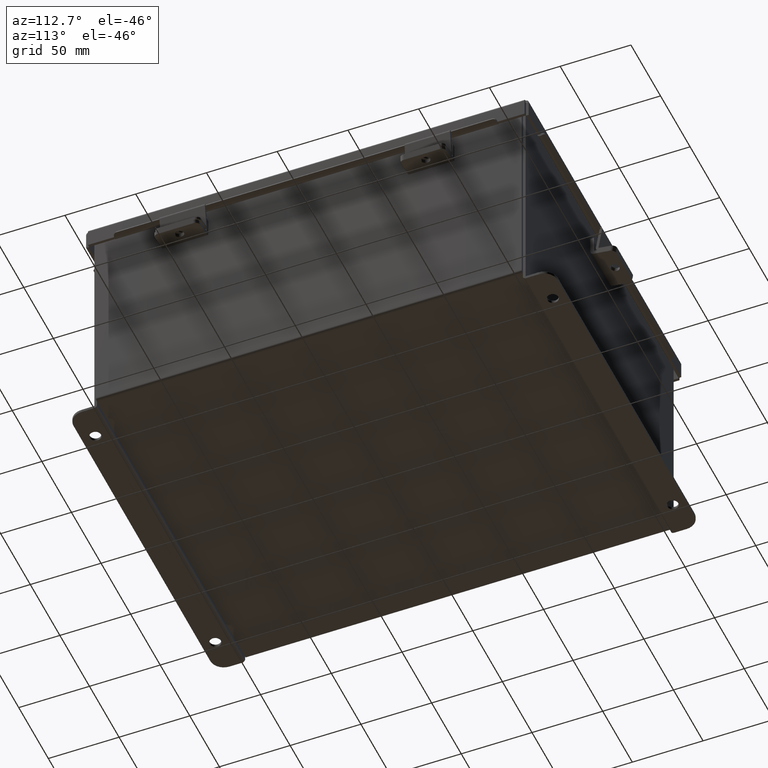
[diagram: clean part render]
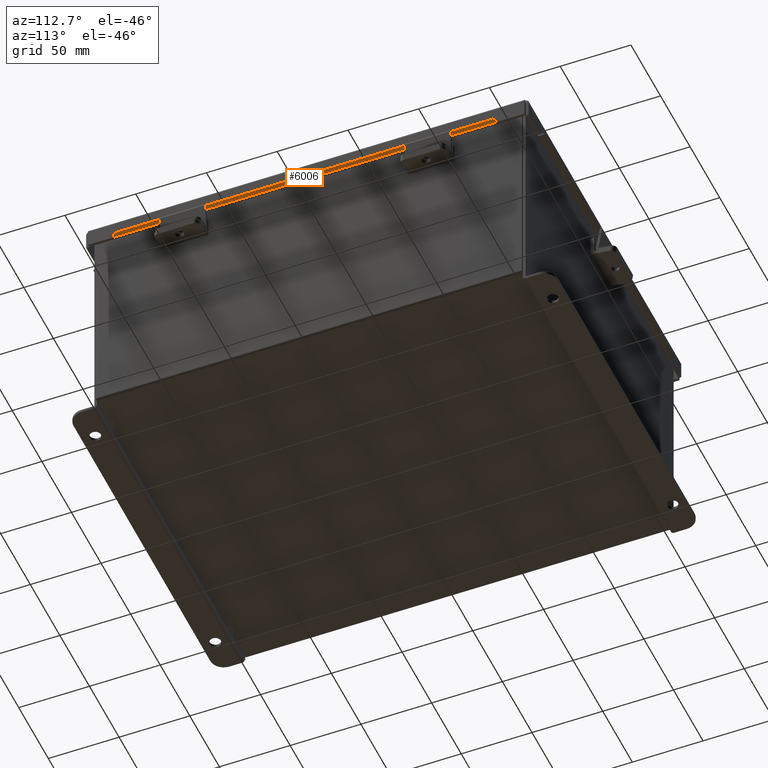
[diagram: same view with one face highlighted and labeled with its STEP entity id]
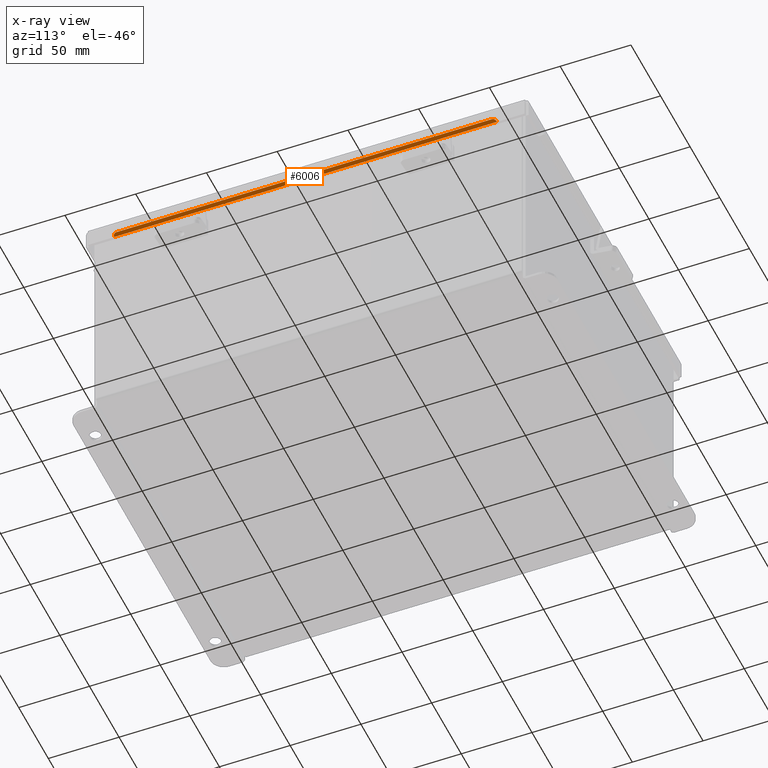
[diagram: x-ray of the same camera — body ghosted, the highlighted face saturated]
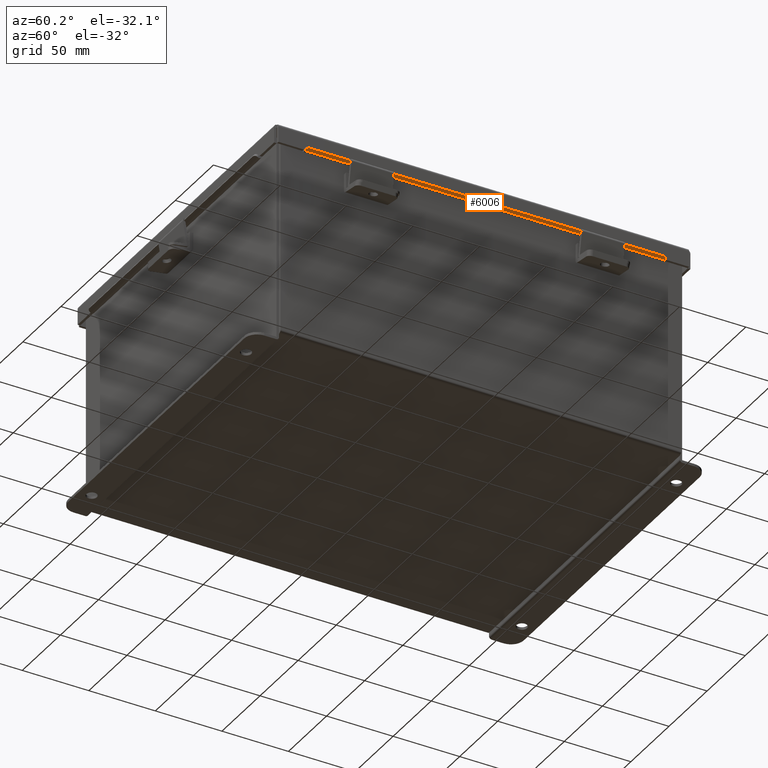
[diagram: same view with one face highlighted and labeled with its STEP entity id]
A machine part, auxiliary view. The second image highlights one B-rep face of the part: STEP entity #6006.
The next image is the same camera in x-ray: the body ghosted, the highlighted face saturated — about 0% of this face is hidden behind the body in this view.
A second angle (auxiliary view) of the same face is appended — the face is thin or edge-on in the first view.
In plain terms, the highlighted planar face has unit normal (-0.5, -0, 0.866).
Its self-contained STEP definition (entity closure, byte-faithful):
#38 = CARTESIAN_POINT ( 'NONE',  ( -5.211453810567685500, -5.324478932188125800, 0.5416841953253939100 ) ) ;
#125 = CARTESIAN_POINT ( 'NONE',  ( -5.207100000000020900, -5.324478932188125800, 0.5441978690286362100 ) ) ;
#250 = CARTESIAN_POINT ( 'NONE',  ( -1.537419589632096400, 0.0000000000000000000, 2.662888841794467600 ) ) ;
#278 = DIRECTION ( 'NONE',  ( 6.665017718884367800E-017, -1.000000000000000000, 3.848049774149886500E-017 ) ) ;
#362 = DIRECTION ( 'NONE',  ( -0.5000000000000017800, 1.449531913343603300E-029, 0.8660254037844376000 ) ) ;
#389 = CARTESIAN_POINT ( 'NONE',  ( -5.211453810567685500, -5.224478932188126200, 0.5416841953253939100 ) ) ;
#424 = CARTESIAN_POINT ( 'NONE',  ( -5.298056350946129800, -5.224478932188126200, 0.4916841953253942000 ) ) ;
#446 = ORIENTED_EDGE ( 'NONE', *, *, #5967, .F. ) ;
#794 = EDGE_LOOP ( 'NONE', ( #1630, #7295, #2023, #446, #7654, #1077 ) ) ;
#860 = VERTEX_POINT ( 'NONE', #424 ) ;
#912 = CARTESIAN_POINT ( 'NONE',  ( -5.298056350946129800, 5.324478932188144500, 0.4916841953253942000 ) ) ;
#1032 = VECTOR ( 'NONE', #2809, 39.37007874015748100 ) ;
#1037 = CARTESIAN_POINT ( 'NONE',  ( -5.207100000000020900, 5.324478932188144500, 0.5441978690286362100 ) ) ;
#1077 = ORIENTED_EDGE ( 'NONE', *, *, #7924, .T. ) ;
#1630 = ORIENTED_EDGE ( 'NONE', *, *, #3448, .T. ) ;
#1631 = DIRECTION ( 'NONE',  ( -0.5000000000000017800, 1.449531913343603300E-029, 0.8660254037844376000 ) ) ;
#1815 = DIRECTION ( 'NONE',  ( 0.8660254037844374900, 1.194384714311183600E-029, 0.5000000000000017800 ) ) ;
#1844 = LINE ( 'NONE', #5726, #1032 ) ;
#1898 = FACE_OUTER_BOUND ( 'NONE', #794, .T. ) ;
#1908 = EDGE_CURVE ( 'NONE', #5419, #4129, #6901, .T. ) ;
#2023 = ORIENTED_EDGE ( 'NONE', *, *, #5359, .T. ) ;
#2053 = CARTESIAN_POINT ( 'NONE',  ( -5.193600000000019500, -5.324478932188125800, 0.5519920976626973000 ) ) ;
#2809 = DIRECTION ( 'NONE',  ( -3.166671605124525800E-030, -1.000000000000000000, -1.853823127269377700E-029 ) ) ;
#3012 = DIRECTION ( 'NONE',  ( -0.8660254037844363800, 0.0000000000000000000, -0.5000000000000038900 ) ) ;
#3189 = DIRECTION ( 'NONE',  ( -0.8660254037844364900, -9.059668427480799000E-015, -0.5000000000000036600 ) ) ;
#3448 = EDGE_CURVE ( 'NONE', #6844, #860, #1844, .T. ) ;
#3495 = VECTOR ( 'NONE', #278, 39.37007874015748100 ) ;
#3834 = EDGE_CURVE ( 'NONE', #860, #6347, #5514, .T. ) ;
#4012 = AXIS2_PLACEMENT_3D ( 'NONE', #250, #9588, #9508 ) ;
#4129 = VERTEX_POINT ( 'NONE', #4637 ) ;
#4531 = VERTEX_POINT ( 'NONE', #125 ) ;
#4637 = CARTESIAN_POINT ( 'NONE',  ( -5.211453810567687300, 5.324478932188145400, 0.5416841953254026800 ) ) ;
#5252 = LINE ( 'NONE', #8063, #3495 ) ;
#5359 = EDGE_CURVE ( 'NONE', #6347, #4531, #8118, .T. ) ;
#5419 = VERTEX_POINT ( 'NONE', #1037 ) ;
#5514 = CIRCLE ( 'NONE', #8482, 0.09999999999999993600 ) ;
#5726 = CARTESIAN_POINT ( 'NONE',  ( -5.298056350946129800, -5.324478932188125800, 0.4916841953253942000 ) ) ;
#5830 = AXIS2_PLACEMENT_3D ( 'NONE', #6096, #1631, #6835 ) ;
#5897 = VECTOR ( 'NONE', #1815, 39.37007874015748100 ) ;
#5967 = EDGE_CURVE ( 'NONE', #5419, #4531, #5252, .T. ) ;
#6006 = ADVANCED_FACE ( 'NONE', ( #1898 ), #9666, .F. ) ;
#6096 = CARTESIAN_POINT ( 'NONE',  ( -5.211453810567685500, 5.224478932188144000, 0.5416841953254026800 ) ) ;
#6347 = VERTEX_POINT ( 'NONE', #38 ) ;
#6785 = VECTOR ( 'NONE', #3189, 39.37007874015748900 ) ;
#6835 = DIRECTION ( 'NONE',  ( -0.8660254037844363800, 1.092739197465705900E-014, -0.5000000000000038900 ) ) ;
#6844 = VERTEX_POINT ( 'NONE', #8709 ) ;
#6901 = LINE ( 'NONE', #912, #6785 ) ;
#7295 = ORIENTED_EDGE ( 'NONE', *, *, #3834, .T. ) ;
#7654 = ORIENTED_EDGE ( 'NONE', *, *, #1908, .T. ) ;
#7924 = EDGE_CURVE ( 'NONE', #4129, #6844, #9144, .T. ) ;
#8063 = CARTESIAN_POINT ( 'NONE',  ( -5.207100000000020900, -3.260076414314189000E-016, 0.5441978690286373200 ) ) ;
#8118 = LINE ( 'NONE', #2053, #5897 ) ;
#8482 = AXIS2_PLACEMENT_3D ( 'NONE', #389, #362, #3012 ) ;
#8709 = CARTESIAN_POINT ( 'NONE',  ( -5.298056350946129800, 5.224478932188144000, 0.4916841953253942000 ) ) ;
#9144 = CIRCLE ( 'NONE', #5830, 0.09999999999999993600 ) ;
#9508 = DIRECTION ( 'NONE',  ( -0.8660254037844374900, -1.194384714311183600E-029, -0.5000000000000017800 ) ) ;
#9588 = DIRECTION ( 'NONE',  ( 0.5000000000000018900, -1.449531913343603300E-029, -0.8660254037844376000 ) ) ;
#9666 = PLANE ( 'NONE',  #4012 ) ;